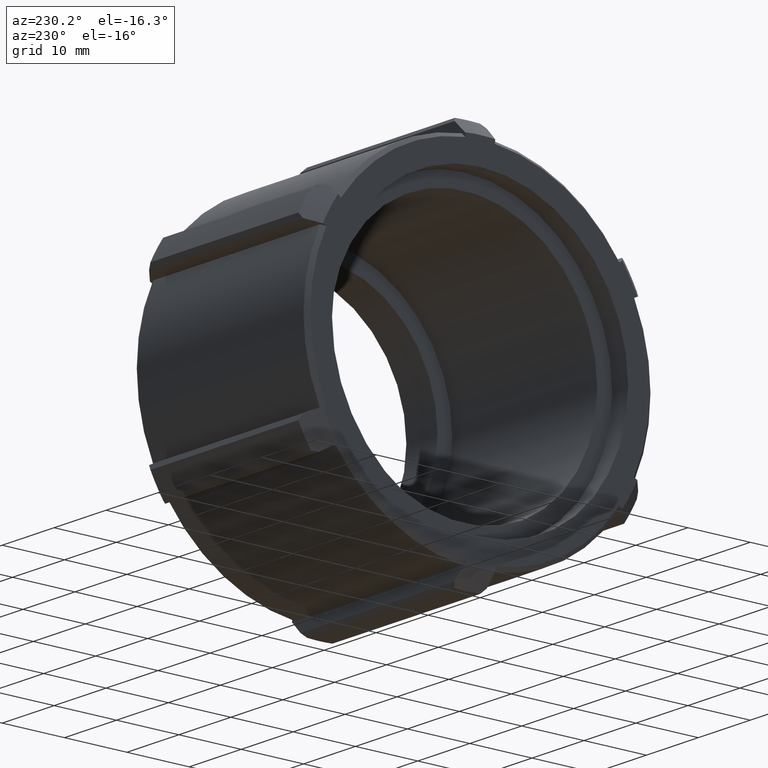
[diagram: clean part render]
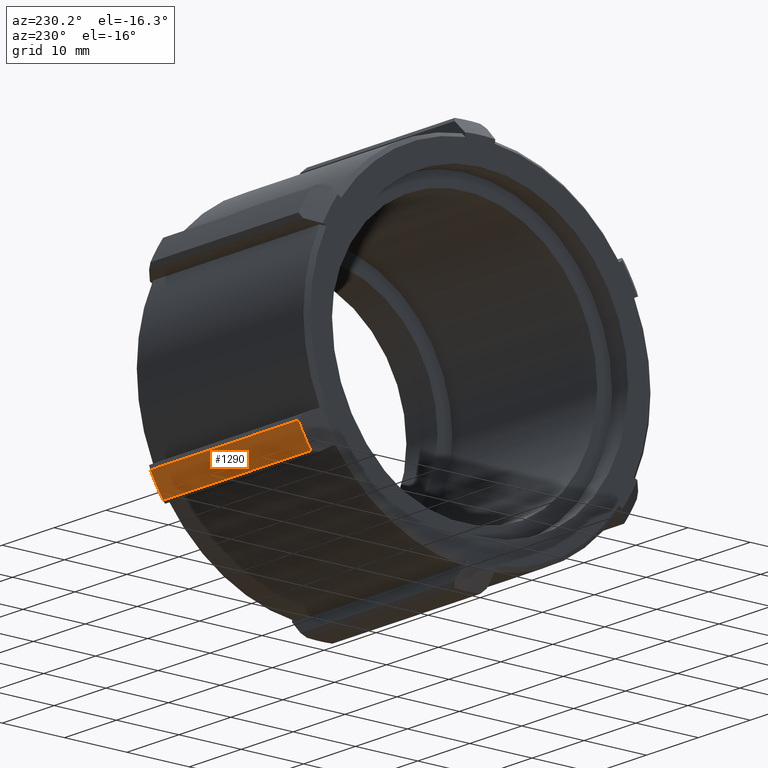
[diagram: same view with one face highlighted and labeled with its STEP entity id]
A machine part, auxiliary view. The second image highlights one B-rep face of the part: STEP entity #1290.
In plain terms, the highlighted cylindrical surface (partial cylindrical patch) has radius 30.25 mm, axis along (1, 0, 0).
Its self-contained STEP definition (entity closure, byte-faithful):
#73=CYLINDRICAL_SURFACE('',#1412,30.25);
#127=LINE('',#1989,#235);
#181=LINE('',#2199,#289);
#235=VECTOR('',#1601,28.46);
#289=VECTOR('',#1747,28.46);
#386=FACE_OUTER_BOUND('',#460,.T.);
#460=EDGE_LOOP('',(#1159,#1160,#1161,#1162));
#524=CIRCLE('',#1368,30.25);
#534=CIRCLE('',#1413,30.25);
#618=VERTEX_POINT('',#1984);
#619=VERTEX_POINT('',#1988);
#622=VERTEX_POINT('',#1999);
#663=VERTEX_POINT('',#2198);
#759=EDGE_CURVE('',#618,#619,#127,.T.);
#765=EDGE_CURVE('',#622,#618,#524,.T.);
#845=EDGE_CURVE('',#663,#622,#181,.T.);
#846=EDGE_CURVE('',#619,#663,#534,.T.);
#1159=ORIENTED_EDGE('',*,*,#759,.F.);
#1160=ORIENTED_EDGE('',*,*,#765,.F.);
#1161=ORIENTED_EDGE('',*,*,#845,.F.);
#1162=ORIENTED_EDGE('',*,*,#846,.F.);
#1290=ADVANCED_FACE('',(#386),#73,.T.);
#1368=AXIS2_PLACEMENT_3D('',#2003,#1607,#1608);
#1412=AXIS2_PLACEMENT_3D('',#2197,#1745,#1746);
#1413=AXIS2_PLACEMENT_3D('',#2200,#1748,#1749);
#1601=DIRECTION('',(1.,0.,0.));
#1607=DIRECTION('center_axis',(-1.,0.,0.));
#1608=DIRECTION('ref_axis',(0.,-1.,0.));
#1745=DIRECTION('center_axis',(1.,0.,0.));
#1746=DIRECTION('ref_axis',(0.,1.,0.));
#1747=DIRECTION('',(-1.,0.,0.));
#1748=DIRECTION('center_axis',(1.,0.,0.));
#1749=DIRECTION('ref_axis',(0.,-1.,0.));
#1984=CARTESIAN_POINT('',(2.42,25.1213898627454,-16.8516548553533));
#1988=CARTESIAN_POINT('',(30.88,25.1213898627454,-16.8516548553533));
#1989=CARTESIAN_POINT('',(16.65,25.1213898627454,-16.8516548553533));
#1999=CARTESIAN_POINT('',(2.42,27.154656131916,-13.3299343718338));
#2003=CARTESIAN_POINT('Origin',(2.42,0.,0.));
#2197=CARTESIAN_POINT('Origin',(16.65,0.,0.));
#2198=CARTESIAN_POINT('',(30.88,27.154656131916,-13.3299343718338));
#2199=CARTESIAN_POINT('',(16.65,27.154656131916,-13.3299343718338));
#2200=CARTESIAN_POINT('Origin',(30.88,0.,0.));